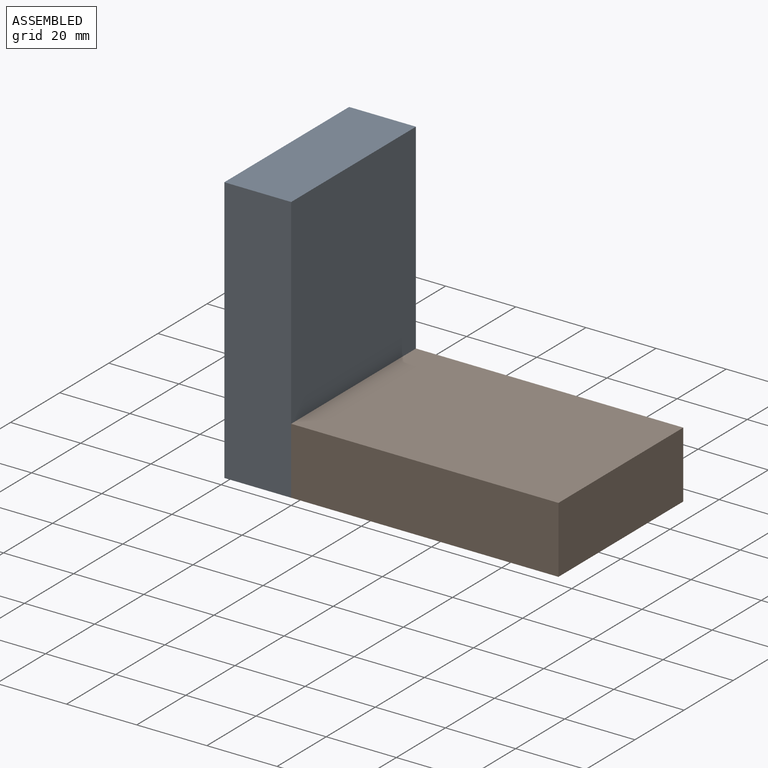
[diagram: assembled view]
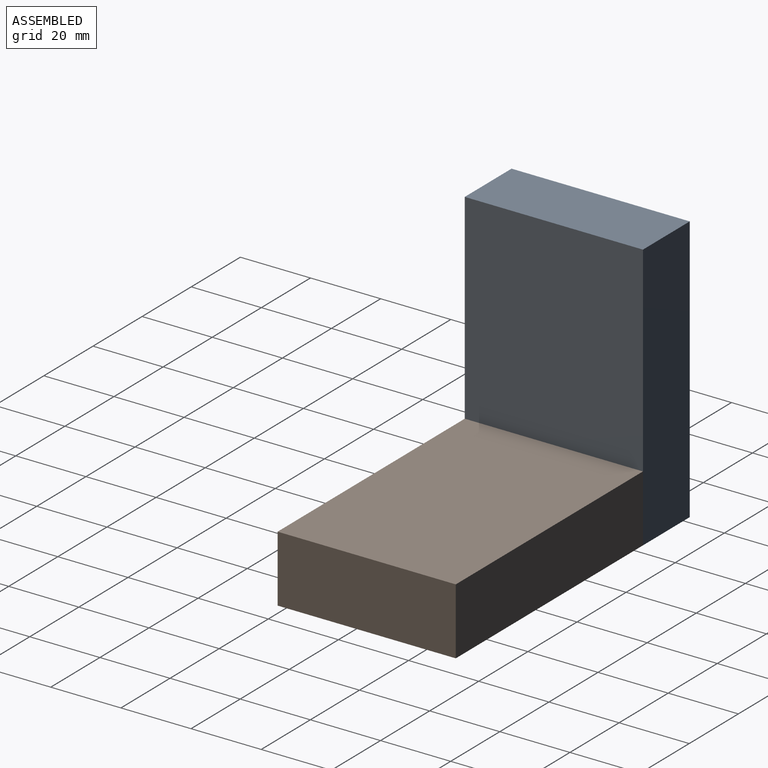
[diagram: assembled view, second angle]
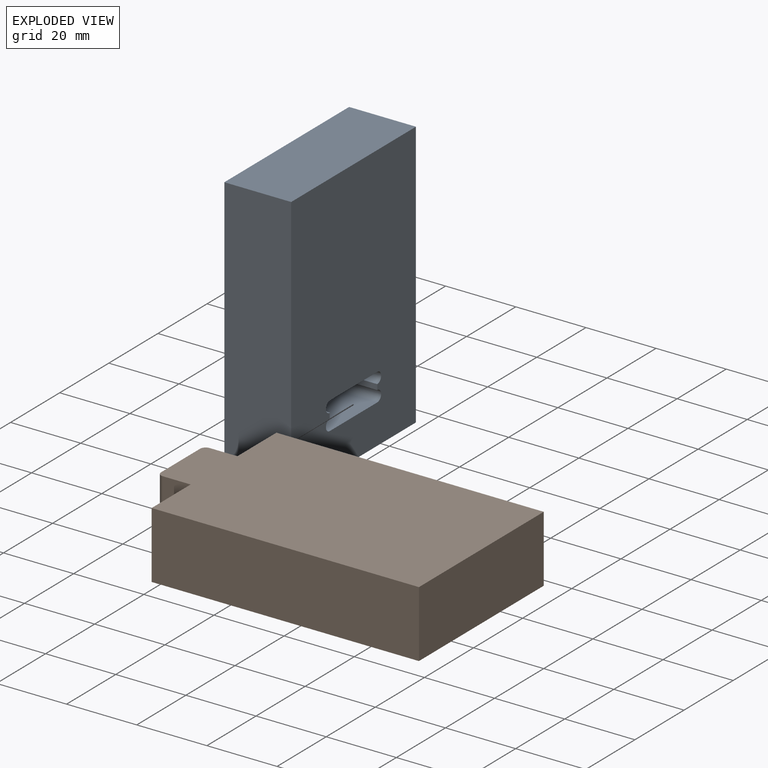
[diagram: exploded view]
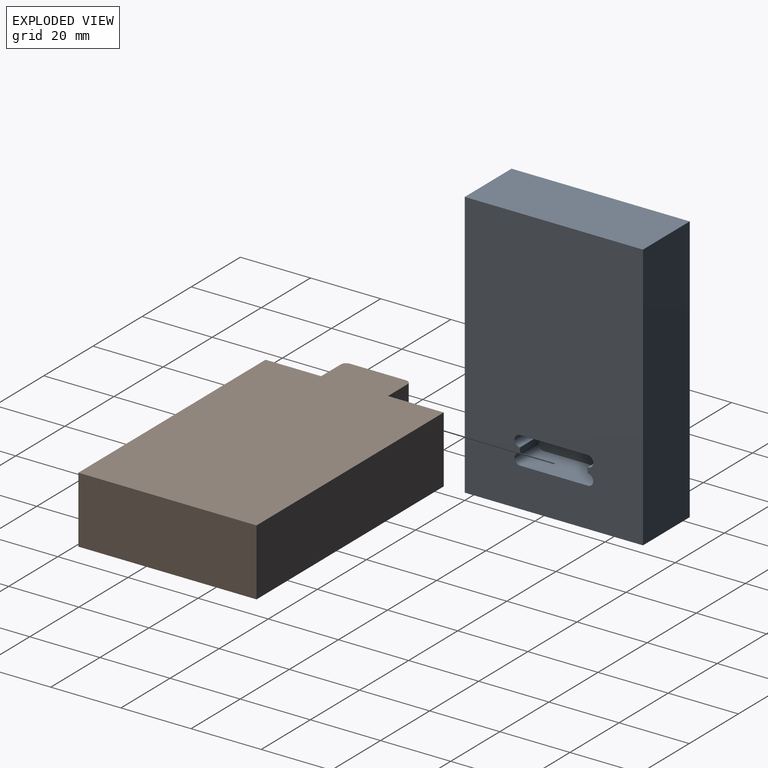
[diagram: exploded view, second angle]
ASSEMBLY  parts=2 mates=3
PART A: 15 faces, bbox 76.2x50.8x19.1 mm
  f0: plane 9.78x1.52mm, normal (0,-1,0), area 14.9mm2, adj f2,f10,f13,f14
  f1: plane 9.78x1.52mm, normal (0,1,0), area 14.9mm2, adj f2,f10,f11,f12
  f2: plane 76.2x50.8mm, normal (0,0,1), area 3703.1mm2, adj f0,f1,f3,f4,f5,f6,f8,f9
  f3: plane 50.8x19.05mm, normal (-1,0,0), area 967.7mm2, adj f2,f4,f6,f7
  f4: plane 76.2x19.05mm, normal (0,-1,0), area 1451.6mm2, adj f2,f3,f5,f7
  f5: plane 50.8x19.05mm, normal (1,0,0), area 967.7mm2, adj f2,f4,f6,f7
  f6: plane 76.2x19.05mm, normal (0,1,0), area 1451.6mm2, adj f2,f3,f5,f7
  f7: plane 76.2x50.8mm, normal (0,0,-1), area 3871mm2, adj f3,f4,f5,f6
  f8: plane 19.3x9.78mm, normal (1,0,0), area 188.8mm2, adj f2,f10,f12,f13
  f9: plane 19.3x9.78mm, normal (-1,0,0), area 188.8mm2, adj f2,f10,f11,f14
  f10: plane 22.48x7.87mm, normal (0,0,1), area 167.8mm2, adj f0,f1,f8,f9,f11,f12,f13,f14
  f11: cylinder r=1.59mm len=9.78mm, axis (0,0,1), area 48.8mm2, adj f1,f2,f9,f10
  f12: cylinder r=1.59mm len=9.78mm, axis (0,0,1), area 48.8mm2, adj f1,f2,f8,f10
  f13: cylinder r=1.59mm len=9.78mm, axis (0,0,1), area 48.8mm2, adj f0,f2,f8,f10
  f14: cylinder r=1.59mm len=9.78mm, axis (0,0,1), area 48.8mm2, adj f0,f2,f9,f10
PART B: 12 faces, bbox 85.7x50.8x19.1 mm
  f0: plane 50.8x19.05mm, normal (-1,0,0), area 822.6mm2, adj f1,f3,f4,f5,f6,f7,f8
  f1: plane 76.2x19.05mm, normal (0,-1,0), area 1451.6mm2, adj f0,f2,f4,f5
  f2: plane 50.8x19.05mm, normal (1,0,0), area 967.7mm2, adj f1,f3,f4,f5
  f3: plane 76.2x19.05mm, normal (0,1,0), area 1451.6mm2, adj f0,f2,f4,f5
  f4: plane 85.73x50.8mm, normal (0,0,1), area 4051.3mm2, adj f0,f1,f2,f3,f6,f8,f9,f10
  f5: plane 76.2x50.8mm, normal (0,0,-1), area 3871mm2, adj f0,f1,f2,f3
  f6: plane 7.94x7.62mm, normal (0,1,0), area 60.5mm2, adj f0,f4,f7,f10
  f7: plane 19.05x9.53mm, normal (0,0,-1), area 180.4mm2, adj f0,f6,f8,f9,f10,f11
  f8: plane 7.94x7.62mm, normal (0,-1,0), area 60.5mm2, adj f0,f4,f7,f11
  f9: plane 15.88x7.62mm, normal (-1,0,0), area 121mm2, adj f4,f7,f10,f11
  f10: cylinder r=1.59mm len=7.62mm, axis (0,0,1), area 19mm2, adj f4,f6,f7,f9
  f11: cylinder r=1.59mm len=7.62mm, axis (0,0,-1), area 19mm2, adj f4,f7,f8,f9
PLACE A rot(axis=(0.71,0,0.71),180deg) t=(-19.05,50.8,0)mm
PLACE B at identity fixed
MATE planar A.f6 <-> B.f1  axis (0,-1,0) through (-9.53,0,38.1)mm
MATE planar B.f5 <-> A.f3  axis (0,0,-1) through (38.1,25.4,0)mm
MATE planar B.f0 <-> A.f2  axis (-1,0,0) through (0,25.4,8.52)mm
